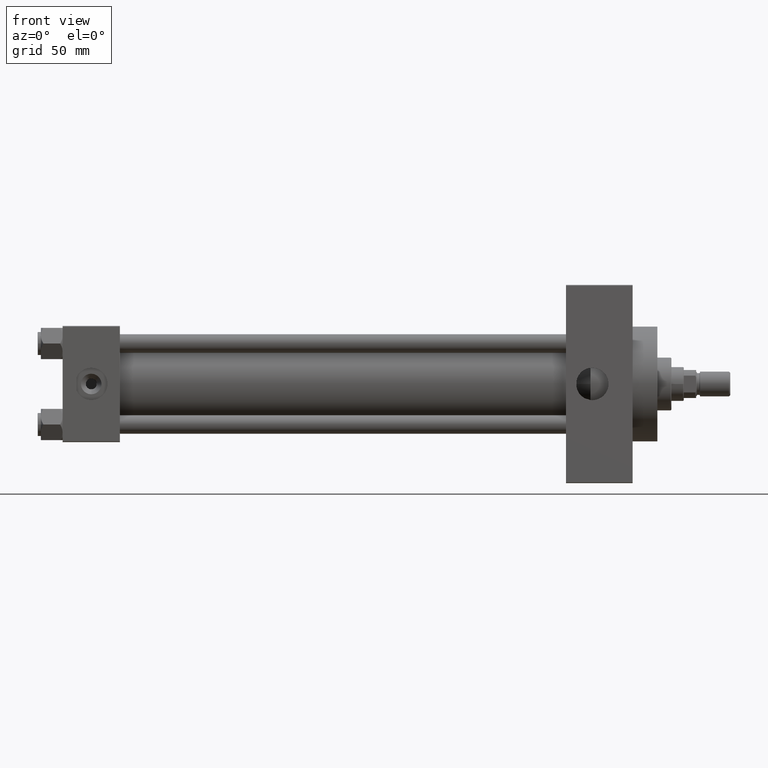
[diagram: clean part render]
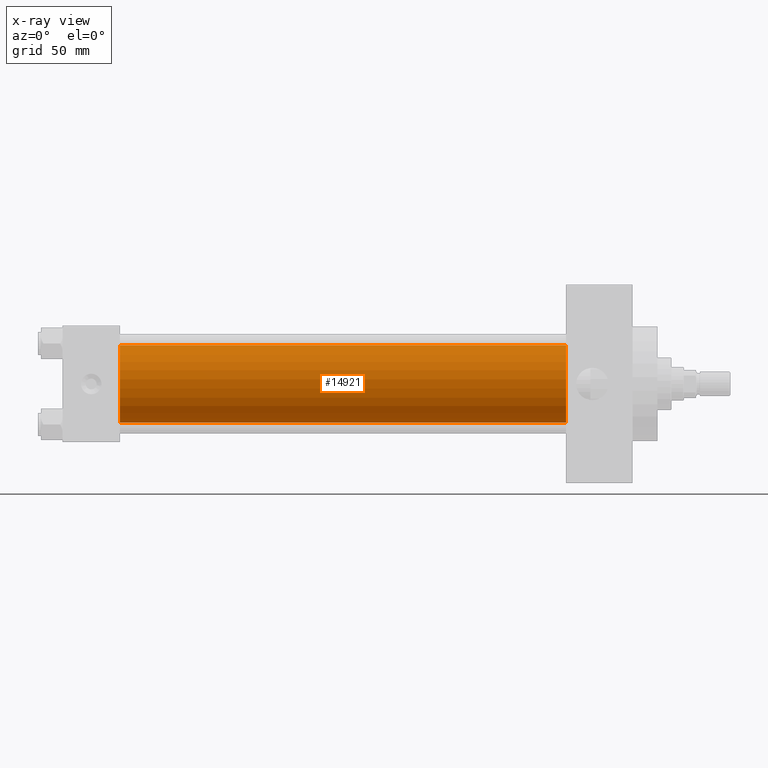
[diagram: x-ray — body ghosted, one internal face saturated and labeled with its STEP entity id]
A machine part, front view, then the same camera in x-ray: the body is ghosted and one INTERNAL B-rep face — a face not visible from any outside direction — is saturated and labeled: STEP entity #14921.
In plain terms, the highlighted cylindrical surface (partial cylindrical patch) has radius 25 mm, axis along (-1, -0, -0).
Its self-contained STEP definition (entity closure, byte-faithful):
#1875 = VERTEX_POINT ( 'NONE', #7959 ) ;
#2132 = VECTOR ( 'NONE', #18061, 1000.000000000000000 ) ;
#3211 = AXIS2_PLACEMENT_3D ( 'NONE', #12927, #21003, #20254 ) ;
#4393 = FACE_OUTER_BOUND ( 'NONE', #11931, .T. ) ;
#5665 = VECTOR ( 'NONE', #23132, 1000.000000000000000 ) ;
#6451 = DIRECTION ( 'NONE',  ( 1.000000000000000000, 0.000000000000000000, 0.000000000000000000 ) ) ;
#7951 = DIRECTION ( 'NONE',  ( 0.000000000000000000, 0.000000000000000000, 1.000000000000000000 ) ) ;
#7959 = CARTESIAN_POINT ( 'NONE',  ( 37.00000000000000000, -2.602085213965210642E-15, 25.00000000000000000 ) ) ;
#7964 = CARTESIAN_POINT ( 'NONE',  ( 324.9999999999999432, 4.595317839031724996E-16, -25.00000000000000000 ) ) ;
#11210 = CARTESIAN_POINT ( 'NONE',  ( 324.9999999999999432, 4.595317839031724996E-16, -25.00000000000000000 ) ) ;
#11499 = CARTESIAN_POINT ( 'NONE',  ( 324.9999999999999432, -2.602085213965210642E-15, 0.000000000000000000 ) ) ;
#11931 = EDGE_LOOP ( 'NONE', ( #31666, #14830, #18653, #14705 ) ) ;
#12749 = CARTESIAN_POINT ( 'NONE',  ( 324.9999999999999432, -2.602085213965210642E-15, 25.00000000000000000 ) ) ;
#12927 = CARTESIAN_POINT ( 'NONE',  ( 37.00000000000000000, -2.602085213965210642E-15, 0.000000000000000000 ) ) ;
#13189 = AXIS2_PLACEMENT_3D ( 'NONE', #11499, #42564, #7951 ) ;
#14705 = ORIENTED_EDGE ( 'NONE', *, *, #30834, .F. ) ;
#14830 = ORIENTED_EDGE ( 'NONE', *, *, #42703, .T. ) ;
#14921 = ADVANCED_FACE ( 'NONE', ( #4393 ), #27154, .F. ) ;
#15814 = VERTEX_POINT ( 'NONE', #11210 ) ;
#16925 = CIRCLE ( 'NONE', #3211, 25.00000000000000000 ) ;
#18061 = DIRECTION ( 'NONE',  ( -1.000000000000000000, -0.000000000000000000, -0.000000000000000000 ) ) ;
#18653 = ORIENTED_EDGE ( 'NONE', *, *, #41983, .F. ) ;
#19499 = VERTEX_POINT ( 'NONE', #29682 ) ;
#19567 = LINE ( 'NONE', #7964, #5665 ) ;
#20254 = DIRECTION ( 'NONE',  ( 0.000000000000000000, 0.000000000000000000, -1.000000000000000000 ) ) ;
#21003 = DIRECTION ( 'NONE',  ( 1.000000000000000000, 0.000000000000000000, 0.000000000000000000 ) ) ;
#21603 = LINE ( 'NONE', #49379, #2132 ) ;
#23132 = DIRECTION ( 'NONE',  ( -1.000000000000000000, -0.000000000000000000, -0.000000000000000000 ) ) ;
#27154 = CYLINDRICAL_SURFACE ( 'NONE', #13189, 25.00000000000000000 ) ;
#29682 = CARTESIAN_POINT ( 'NONE',  ( 37.00000000000000000, 4.595317839031724996E-16, -25.00000000000000000 ) ) ;
#30834 = EDGE_CURVE ( 'NONE', #43851, #1875, #21603, .T. ) ;
#31666 = ORIENTED_EDGE ( 'NONE', *, *, #32158, .T. ) ;
#32158 = EDGE_CURVE ( 'NONE', #43851, #15814, #37717, .T. ) ;
#37717 = CIRCLE ( 'NONE', #40130, 25.00000000000000000 ) ;
#40130 = AXIS2_PLACEMENT_3D ( 'NONE', #41075, #6451, #49140 ) ;
#41075 = CARTESIAN_POINT ( 'NONE',  ( 324.9999999999999432, -2.602085213965210642E-15, 0.000000000000000000 ) ) ;
#41983 = EDGE_CURVE ( 'NONE', #1875, #19499, #16925, .T. ) ;
#42564 = DIRECTION ( 'NONE',  ( -1.000000000000000000, -0.000000000000000000, -0.000000000000000000 ) ) ;
#42703 = EDGE_CURVE ( 'NONE', #15814, #19499, #19567, .T. ) ;
#43851 = VERTEX_POINT ( 'NONE', #12749 ) ;
#49140 = DIRECTION ( 'NONE',  ( 0.000000000000000000, 0.000000000000000000, -1.000000000000000000 ) ) ;
#49379 = CARTESIAN_POINT ( 'NONE',  ( 324.9999999999999432, -2.602085213965210642E-15, 25.00000000000000000 ) ) ;